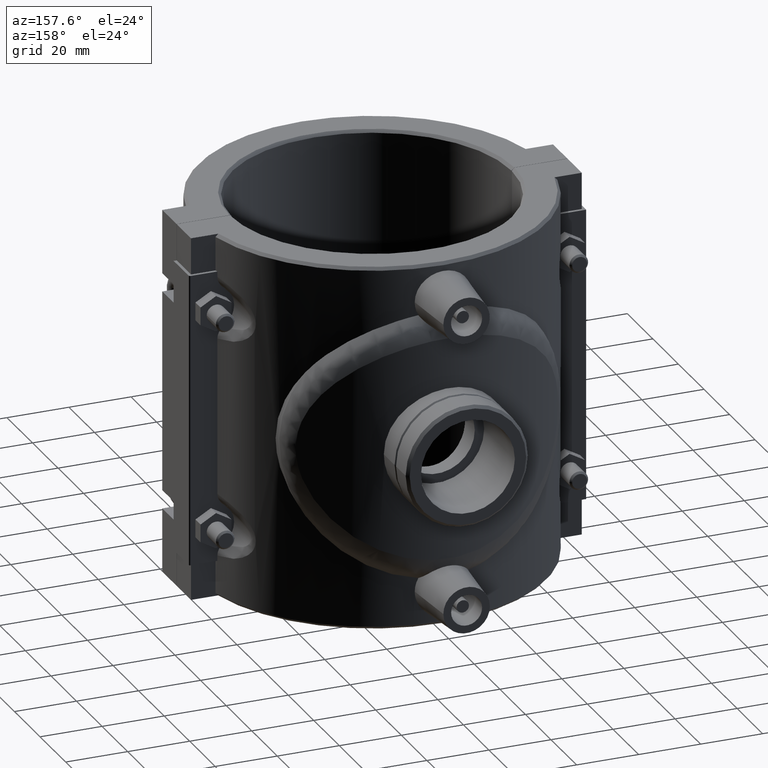
[diagram: clean part render]
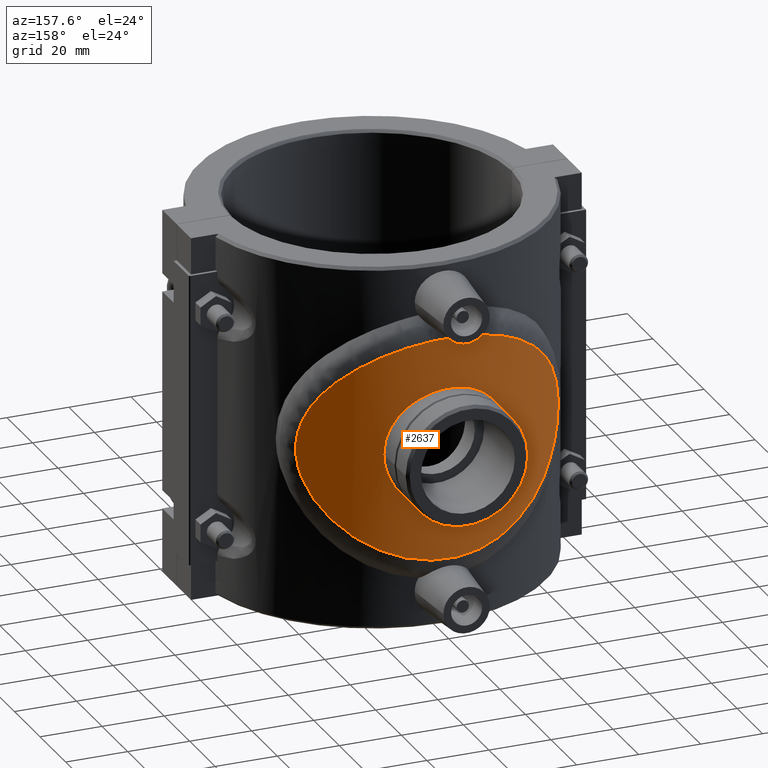
[diagram: same view with one face highlighted and labeled with its STEP entity id]
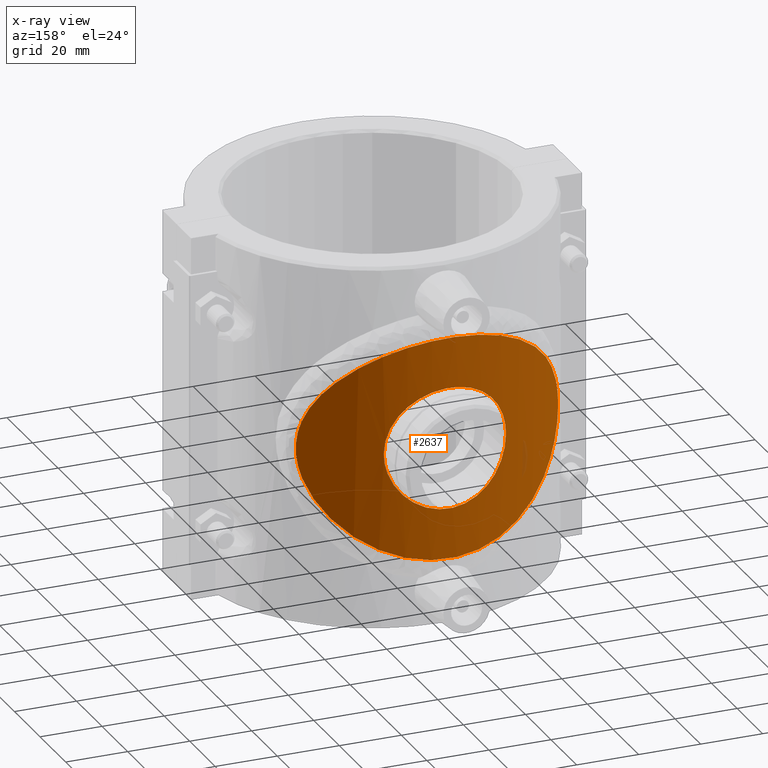
[diagram: x-ray of the same camera — body ghosted, the highlighted face saturated]
A machine part, auxiliary view. The second image highlights one B-rep face of the part: STEP entity #2637.
The next image is the same camera in x-ray: the body ghosted, the highlighted face saturated — about 0% of this face is hidden behind the body in this view.
In plain terms, the highlighted cylindrical surface (partial cylindrical patch) has radius 60.3 mm, axis along (0, 0, -1).
Its self-contained STEP definition (entity closure, byte-faithful):
#93=CYLINDRICAL_SURFACE('',#2861,60.3);
#143=FACE_BOUND('',#537,.T.);
#174=B_SPLINE_CURVE_WITH_KNOTS('',3,(#4505,#4506,#4507,#4508,#4509,#4510,
#4511,#4512,#4513,#4514,#4515,#4516,#4517,#4518,#4519,#4520,#4521,#4522,
#4523,#4524,#4525,#4526,#4527,#4528,#4529,#4530,#4531,#4532),
 .UNSPECIFIED.,.T.,.F.,(4,1,1,1,1,1,1,1,1,1,1,1,1,1,1,1,1,1,1,1,1,1,1,1,
1,4),(0.,1.02425932740397,2.04851865480795,3.07277798221192,4.09703730961589,
5.46271641282119,6.82839551602649,7.51123506762914,8.19407461923179,9.55975372243709,
10.9254328256424,12.2911119288477,13.656791032053,14.3396305836556,15.0224701352583,
16.3881492384636,17.7538283416689,19.1195074448742,20.4851865480795,21.1680260996821,
21.8508656512848,23.2165447544901,24.5822238576954,26.6307425125033,27.6550018399073,
28.6792611673113),.UNSPECIFIED.);
#210=B_SPLINE_CURVE_WITH_KNOTS('',3,(#5490,#5491,#5492,#5493,#5494,#5495,
#5496,#5497,#5498,#5499,#5500,#5501,#5502,#5503,#5504,#5505,#5506,#5507,
#5508,#5509,#5510,#5511,#5512,#5513,#5514,#5515,#5516,#5517,#5518,#5519,
#5520,#5521,#5522,#5523,#5524,#5525,#5526,#5527,#5528,#5529,#5530,#5531,
#5532,#5533,#5534,#5535,#5536,#5537,#5538,#5539,#5540,#5541,#5542,#5543,
#5544,#5545,#5546,#5547,#5548,#5549,#5550,#5551,#5552,#5553,#5554,#5555),
 .UNSPECIFIED.,.T.,.F.,(4,2,2,2,2,2,2,2,2,2,2,2,2,2,2,2,2,2,2,2,2,2,2,2,
2,2,2,2,2,2,2,2,4),(0.,0.373892604560124,0.747785209120248,1.12167781368037,
1.4955704182405,1.86930408582334,2.24303775340618,2.61677142098903,2.99050508857187,
3.36423875615471,3.73797242373756,4.1117060913204,4.48543975890324,4.85933236346337,
5.23322496802349,5.60711757258362,5.98101017714374,6.35490278170387,6.72879538626399,
7.10268799082411,7.47658059538424,7.85031426296708,8.22404793054993,8.59778159813277,
8.97151526571561,9.34524893329846,9.7189826008813,10.0927162684641,10.466449936047,
10.8403425406071,11.2142351451672,11.5881277497274,11.9620203542875),
 .UNSPECIFIED.);
#338=FACE_OUTER_BOUND('',#536,.T.);
#536=EDGE_LOOP('',(#2286));
#537=EDGE_LOOP('',(#2287));
#1173=VERTEX_POINT('',#4503);
#1298=VERTEX_POINT('',#5489);
#1456=EDGE_CURVE('',#1173,#1173,#174,.T.);
#1646=EDGE_CURVE('',#1298,#1298,#210,.T.);
#2286=ORIENTED_EDGE('',*,*,#1456,.F.);
#2287=ORIENTED_EDGE('',*,*,#1646,.T.);
#2637=ADVANCED_FACE('',(#338,#143),#93,.T.);
#2861=AXIS2_PLACEMENT_3D('',#5603,#3461,#3462);
#3461=DIRECTION('center_axis',(0.,0.,-1.));
#3462=DIRECTION('ref_axis',(1.,0.,0.));
#4503=CARTESIAN_POINT('',(-42.3157894736842,42.9588635931962,-5.55111512312578E-15));
#4505=CARTESIAN_POINT('Ctrl Pts',(-42.3164324244183,42.9574916590565,-0.000177281542254723));
#4506=CARTESIAN_POINT('Ctrl Pts',(-42.3160445018875,42.9581537197012,-2.80072938108253));
#4507=CARTESIAN_POINT('Ctrl Pts',(-41.5304970953936,43.7513333472452,-8.40057930435324));
#4508=CARTESIAN_POINT('Ctrl Pts',(-38.2806041087271,46.6939446235443,-16.0051364081152));
#4509=CARTESIAN_POINT('Ctrl Pts',(-33.337227903732,50.4024283199438,-22.623507314427));
#4510=CARTESIAN_POINT('Ctrl Pts',(-26.1587684904021,54.5967697552129,-28.7882261762013));
#4511=CARTESIAN_POINT('Ctrl Pts',(-16.2283523006792,58.5185734719466,-33.8459554584293));
#4512=CARTESIAN_POINT('Ctrl Pts',(-5.51979481916638,60.3359875740193,-36.0408440258954));
#4513=CARTESIAN_POINT('Ctrl Pts',(3.30845187167748,60.3271278236238,-36.0346939654187));
#4514=CARTESIAN_POINT('Ctrl Pts',(11.9795221000619,59.3785179174446,-34.8774395989939));
#4515=CARTESIAN_POINT('Ctrl Pts',(21.9469234049248,56.5652396009508,-31.3964455265501));
#4516=CARTESIAN_POINT('Ctrl Pts',(31.5368561644533,51.7026505621251,-24.7307144094139));
#4517=CARTESIAN_POINT('Ctrl Pts',(38.498028091835,46.5957248805214,-16.146267506287));
#4518=CARTESIAN_POINT('Ctrl Pts',(41.7966621248401,43.4732709595119,-7.47922246447008));
#4519=CARTESIAN_POINT('Ctrl Pts',(42.4891048199159,42.7872860755658,-0.00100245265220519));
#4520=CARTESIAN_POINT('Ctrl Pts',(41.7971203091863,43.4729563316244,7.47902926967761));
#4521=CARTESIAN_POINT('Ctrl Pts',(38.4980328818942,46.5953559687873,16.1457187038187));
#4522=CARTESIAN_POINT('Ctrl Pts',(31.5374220558865,51.7032778717055,24.7306275110884));
#4523=CARTESIAN_POINT('Ctrl Pts',(21.9469794373482,56.5643005320585,31.3965718921596));
#4524=CARTESIAN_POINT('Ctrl Pts',(11.978707564583,59.378908396268,34.8771632476528));
#4525=CARTESIAN_POINT('Ctrl Pts',(3.30885407975617,60.3264146896481,36.0349994181199));
#4526=CARTESIAN_POINT('Ctrl Pts',(-5.51843575388322,60.3383829795316,36.0398746320811));
#4527=CARTESIAN_POINT('Ctrl Pts',(-16.2306580171945,58.5137496849994,33.848128757257));
#4528=CARTESIAN_POINT('Ctrl Pts',(-28.8602785062002,53.5394317417707,27.4037539945216));
#4529=CARTESIAN_POINT('Ctrl Pts',(-37.1891133291303,47.6886398785429,18.5351818220309));
#4530=CARTESIAN_POINT('Ctrl Pts',(-41.5328246305779,43.7473609833769,8.40273329288842));
#4531=CARTESIAN_POINT('Ctrl Pts',(-42.316820346949,42.9568295984118,2.80037481799802));
#4532=CARTESIAN_POINT('Ctrl Pts',(-42.3164324244183,42.9574916590565,-0.000177281542255159));
#5489=CARTESIAN_POINT('',(-19.68915,56.9949767284583,1.77635683940025E-14));
#5490=CARTESIAN_POINT('Ctrl Pts',(-19.68915,56.9949767284583,-5.55111512312578E-16));
#5491=CARTESIAN_POINT('Ctrl Pts',(-19.68915,56.9949767284583,-1.24630868186708));
#5492=CARTESIAN_POINT('Ctrl Pts',(-19.5689100007069,57.0369898415839,-2.53196162237905));
#5493=CARTESIAN_POINT('Ctrl Pts',(-19.066043277251,57.2070488878396,-5.08321375971234));
#5494=CARTESIAN_POINT('Ctrl Pts',(-18.6835598969032,57.3349253157906,-6.34885250417827));
#5495=CARTESIAN_POINT('Ctrl Pts',(-17.6762012422306,57.6534557055359,-8.77127582845449));
#5496=CARTESIAN_POINT('Ctrl Pts',(-17.0505268018416,57.8440209367251,-9.93016443508014));
#5497=CARTESIAN_POINT('Ctrl Pts',(-15.6082151361396,58.2497625963666,-12.0711329339014));
#5498=CARTESIAN_POINT('Ctrl Pts',(-14.7914547875944,58.464525785083,-13.0532081740038));
#5499=CARTESIAN_POINT('Ctrl Pts',(-13.0535776272361,58.8769168937985,-14.7910853343621));
#5500=CARTESIAN_POINT('Ctrl Pts',(-12.0716770470252,59.0893401129538,-15.6078014452203));
#5501=CARTESIAN_POINT('Ctrl Pts',(-9.93060911993242,59.4866245823726,-17.0502743449621));
#5502=CARTESIAN_POINT('Ctrl Pts',(-8.77144628551118,59.6711225206843,-17.6761378698744));
#5503=CARTESIAN_POINT('Ctrl Pts',(-6.34847723008043,59.9773121238302,-18.683708441306));
#5504=CARTESIAN_POINT('Ctrl Pts',(-5.08257524567845,60.099012181773,-19.06621567545));
#5505=CARTESIAN_POINT('Ctrl Pts',(-2.53124282111008,60.2604069529413,-19.5690051125285));
#5506=CARTESIAN_POINT('Ctrl Pts',(-1.24577889194282,60.3,-19.68915));
#5507=CARTESIAN_POINT('Ctrl Pts',(1.24577889194281,60.3,-19.68915));
#5508=CARTESIAN_POINT('Ctrl Pts',(2.53124282111006,60.2604069529414,-19.5690051125285));
#5509=CARTESIAN_POINT('Ctrl Pts',(5.08257524567843,60.099012181773,-19.06621567545));
#5510=CARTESIAN_POINT('Ctrl Pts',(6.34847723008042,59.9773121238302,-18.683708441306));
#5511=CARTESIAN_POINT('Ctrl Pts',(8.77144628551116,59.6711225206843,-17.6761378698744));
#5512=CARTESIAN_POINT('Ctrl Pts',(9.9306091199324,59.4866245823726,-17.0502743449622));
#5513=CARTESIAN_POINT('Ctrl Pts',(12.0716770470252,59.0893401129538,-15.6078014452204));
#5514=CARTESIAN_POINT('Ctrl Pts',(13.0535776272361,58.8769168937985,-14.7910853343622));
#5515=CARTESIAN_POINT('Ctrl Pts',(14.7914547875944,58.464525785083,-13.0532081740039));
#5516=CARTESIAN_POINT('Ctrl Pts',(15.6082151361395,58.2497625963666,-12.0711329339014));
#5517=CARTESIAN_POINT('Ctrl Pts',(17.0505268018416,57.8440209367251,-9.93016443508016));
#5518=CARTESIAN_POINT('Ctrl Pts',(17.6762012422306,57.6534557055359,-8.7712758284545));
#5519=CARTESIAN_POINT('Ctrl Pts',(18.6835598969032,57.3349253157906,-6.34885250417828));
#5520=CARTESIAN_POINT('Ctrl Pts',(19.066043277251,57.2070488878396,-5.08321375971235));
#5521=CARTESIAN_POINT('Ctrl Pts',(19.5689100007069,57.0369898415839,-2.53196162237905));
#5522=CARTESIAN_POINT('Ctrl Pts',(19.68915,56.9949767284583,-1.24630868186708));
#5523=CARTESIAN_POINT('Ctrl Pts',(19.68915,56.9949767284583,1.24630868186708));
#5524=CARTESIAN_POINT('Ctrl Pts',(19.5689100007069,57.0369898415839,2.53196162237905));
#5525=CARTESIAN_POINT('Ctrl Pts',(19.066043277251,57.2070488878396,5.08321375971234));
#5526=CARTESIAN_POINT('Ctrl Pts',(18.6835598969032,57.3349253157906,6.34885250417826));
#5527=CARTESIAN_POINT('Ctrl Pts',(17.6762012422306,57.6534557055359,8.77127582845448));
#5528=CARTESIAN_POINT('Ctrl Pts',(17.0505268018416,57.8440209367251,9.93016443508013));
#5529=CARTESIAN_POINT('Ctrl Pts',(15.6082151361396,58.2497625963666,12.0711329339013));
#5530=CARTESIAN_POINT('Ctrl Pts',(14.7914547875944,58.464525785083,13.0532081740038));
#5531=CARTESIAN_POINT('Ctrl Pts',(13.0535776272361,58.8769168937985,14.7910853343621));
#5532=CARTESIAN_POINT('Ctrl Pts',(12.0716770470253,59.0893401129538,15.6078014452203));
#5533=CARTESIAN_POINT('Ctrl Pts',(9.93060911993243,59.4866245823726,17.0502743449621));
#5534=CARTESIAN_POINT('Ctrl Pts',(8.77144628551119,59.6711225206843,17.6761378698744));
#5535=CARTESIAN_POINT('Ctrl Pts',(6.34847723008043,59.9773121238302,18.683708441306));
#5536=CARTESIAN_POINT('Ctrl Pts',(5.08257524567845,60.099012181773,19.06621567545));
#5537=CARTESIAN_POINT('Ctrl Pts',(2.53124282111008,60.2604069529413,19.5690051125285));
#5538=CARTESIAN_POINT('Ctrl Pts',(1.24577889194282,60.3,19.68915));
#5539=CARTESIAN_POINT('Ctrl Pts',(-1.24577889194281,60.3,19.68915));
#5540=CARTESIAN_POINT('Ctrl Pts',(-2.53124282111007,60.2604069529413,19.5690051125285));
#5541=CARTESIAN_POINT('Ctrl Pts',(-5.08257524567844,60.099012181773,19.06621567545));
#5542=CARTESIAN_POINT('Ctrl Pts',(-6.34847723008043,59.9773121238302,18.683708441306));
#5543=CARTESIAN_POINT('Ctrl Pts',(-8.77144628551117,59.6711225206843,17.6761378698744));
#5544=CARTESIAN_POINT('Ctrl Pts',(-9.93060911993241,59.4866245823726,17.0502743449622));
#5545=CARTESIAN_POINT('Ctrl Pts',(-12.0716770470252,59.0893401129538,15.6078014452204));
#5546=CARTESIAN_POINT('Ctrl Pts',(-13.0535776272361,58.8769168937985,14.7910853343622));
#5547=CARTESIAN_POINT('Ctrl Pts',(-14.7914547875944,58.464525785083,13.0532081740039));
#5548=CARTESIAN_POINT('Ctrl Pts',(-15.6082151361395,58.2497625963666,12.0711329339014));
#5549=CARTESIAN_POINT('Ctrl Pts',(-17.0505268018416,57.8440209367251,9.93016443508016));
#5550=CARTESIAN_POINT('Ctrl Pts',(-17.6762012422306,57.6534557055359,8.7712758284545));
#5551=CARTESIAN_POINT('Ctrl Pts',(-18.6835598969032,57.3349253157906,6.34885250417828));
#5552=CARTESIAN_POINT('Ctrl Pts',(-19.066043277251,57.2070488878396,5.08321375971235));
#5553=CARTESIAN_POINT('Ctrl Pts',(-19.5689100007069,57.0369898415839,2.53196162237905));
#5554=CARTESIAN_POINT('Ctrl Pts',(-19.68915,56.9949767284583,1.24630868186708));
#5555=CARTESIAN_POINT('Ctrl Pts',(-19.68915,56.9949767284583,8.32667268468867E-16));
#5603=CARTESIAN_POINT('Origin',(0.,0.,59.));